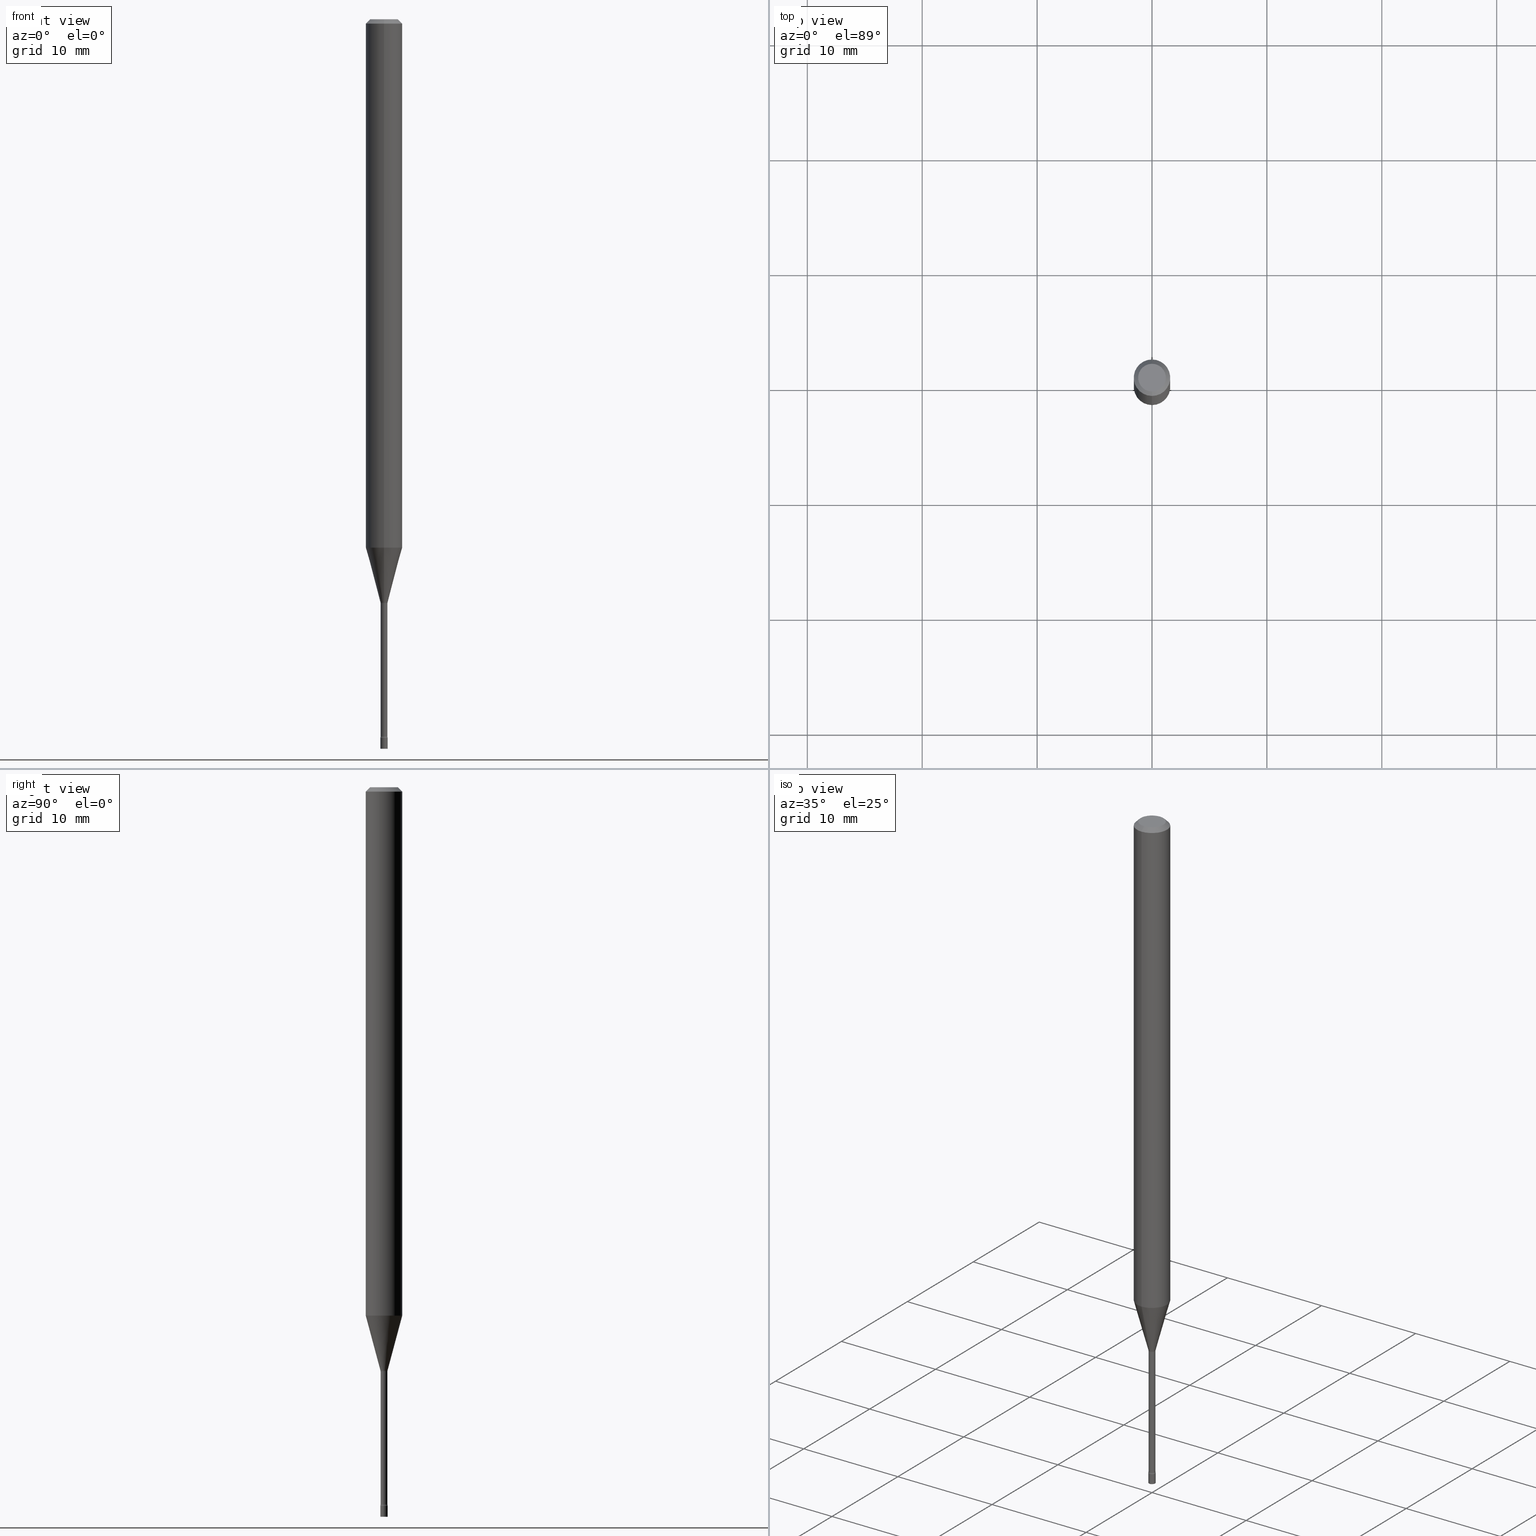
[diagram: canonical four-view strip — front | top / right | iso, engineering-drawing reading convention]
A machine part, canonical four-view strip (front | top / right | iso — engineering-drawing reading convention). The complete STEP part file that produces these views, byte-faithful:
ISO-10303-21;
HEADER;
FILE_DESCRIPTION (( 'STEP AP203' ),
    '1' );
FILE_NAME ('09618.STEP',
    '2024-03-09T00:01:53',
    ( '' ),
    ( '' ),
    'SwSTEP 2.0',
    'SolidWorks 2023',
    '' );
FILE_SCHEMA (( 'CONFIG_CONTROL_DESIGN' ));
ENDSEC;

DATA;
#1 = TOROIDAL_SURFACE ( 'NONE', #302, 0.02675000000000000294, 0.01500000000000002720 ) ;
#2 = CC_DESIGN_APPROVAL ( #36, ( #130 ) ) ;
#3 = EDGE_CURVE ( 'NONE', #458, #146, #490, .T. ) ;
#4 = FACE_OUTER_BOUND ( 'NONE', #18, .T. ) ;
#5 = DIRECTION ( 'NONE',  ( -1.000000000000000000, 6.982962677686265922E-15, -4.876176775795935793E-29 ) ) ;
#6 = CARTESIAN_POINT ( 'NONE',  ( 2.656048273965337288E-16, 0.01226111260565700654, -1.998092501787273045 ) ) ;
#7 = PERSON_AND_ORGANIZATION_ROLE ( 'design_supplier' ) ;
#8 = ORIENTED_EDGE ( 'NONE', *, *, #144, .F. ) ;
#9 = LOCAL_TIME ( 19, 1, 53.00000000000000000, #425 ) ;
#10 =( CONVERSION_BASED_UNIT ( 'INCH', #379 ) LENGTH_UNIT ( ) NAMED_UNIT ( #197 ) );
#11 = APPROVAL_ROLE ( '' ) ;
#12 = FACE_OUTER_BOUND ( 'NONE', #187, .T. ) ;
#13 = ORIENTED_EDGE ( 'NONE', *, *, #414, .T. ) ;
#14 = CARTESIAN_POINT ( 'NONE',  ( 3.840629472727447874E-16, 0.04749999999999999362, -1.947592745229184119E-16 ) ) ;
#15 = CALENDAR_DATE ( 2024, 8, 3 ) ;
#16 = CARTESIAN_POINT ( 'NONE',  ( 6.113672015462842613E-29, -8.728703347107864943E-15, -2.500000000000000000 ) ) ;
#17 = DATE_AND_TIME ( #15, #258 ) ;
#18 = EDGE_LOOP ( 'NONE', ( #401, #25 ) ) ;
#19 = CIRCLE ( 'NONE', #491, 0.06250000000000000000 ) ;
#20 = ADVANCED_FACE ( 'NONE', ( #12 ), #1, .F. ) ;
#21 = ORIENTED_EDGE ( 'NONE', *, *, #75, .T. ) ;
#22 =( NAMED_UNIT ( * ) SI_UNIT ( $, .STERADIAN. ) SOLID_ANGLE_UNIT ( ) );
#23 = VERTEX_POINT ( 'NONE', #506 ) ;
#24 = CARTESIAN_POINT ( 'NONE',  ( 4.895878488789037891E-29, -6.989697800475853089E-15, -2.001974787463811190 ) ) ;
#25 = ORIENTED_EDGE ( 'NONE', *, *, #280, .T. ) ;
#26 = DIRECTION ( 'NONE',  ( -6.982962677686267499E-15, -1.000000000000000000, 0.000000000000000000 ) ) ;
#27 = ORIENTED_EDGE ( 'NONE', *, *, #113, .F. ) ;
#28 = CIRCLE ( 'NONE', #462, 0.04749999999999999362 ) ;
#29 = CARTESIAN_POINT ( 'NONE',  ( -1.867942516280587025E-16, -0.02675000000000699388, -2.001974787463811190 ) ) ;
#30 = PRODUCT_RELATED_PRODUCT_CATEGORY ( 'detail', '', ( #171 ) ) ;
#31 = ORIENTED_EDGE ( 'NONE', *, *, #196, .F. ) ;
#32 = LINE ( 'NONE', #400, #450 ) ;
#33 = ADVANCED_FACE ( 'NONE', ( #134 ), #331, .F. ) ;
#34 = DIRECTION ( 'NONE',  ( -2.445524548783828743E-29, 3.491401512269146579E-15, 1.000000000000000000 ) ) ;
#35 = AXIS2_PLACEMENT_3D ( 'NONE', #157, #230, #114 ) ;
#36 = APPROVAL ( #88, 'UNSPECIFIED' ) ;
#37 = CIRCLE ( 'NONE', #184, 0.01250000000000000069 ) ;
#38 = LINE ( 'NONE', #79, #503 ) ;
#39 = CARTESIAN_POINT ( 'NONE',  ( -8.204981146281379852E-17, -0.01175000000000002605, 4.102396776916256983E-17 ) ) ;
#40 = CARTESIAN_POINT ( 'NONE',  ( 8.728703347113945828E-17, 0.01249999999999127157, -2.500000000000000000 ) ) ;
#41 = EDGE_CURVE ( 'NONE', #374, #420, #449, .T. ) ;
#42 = CIRCLE ( 'NONE', #109, 0.01175000000000000350 ) ;
#43 = AXIS2_PLACEMENT_3D ( 'NONE', #215, #152, #138 ) ;
#44 = CARTESIAN_POINT ( 'NONE',  ( -4.287811248607203282E-16, -0.06250000000000005551, -0.01499999999999981209 ) ) ;
#45 = MECHANICAL_CONTEXT ( 'NONE', #188, 'mechanical' ) ;
#46 = LINE ( 'NONE', #39, #160 ) ;
#47 = ADVANCED_FACE ( 'NONE', ( #221 ), #309, .T. ) ;
#48 = DIRECTION ( 'NONE',  ( -6.982962677686266711E-15, -1.000000000000000000, 3.491401512269146185E-15 ) ) ;
#49 = PERSON_AND_ORGANIZATION ( #510, #355 ) ;
#50 = APPLICATION_CONTEXT ( 'configuration controlled 3d designs of mechanical parts and assemblies' ) ;
#51 = CIRCLE ( 'NONE', #235, 0.01250000000000000069 ) ;
#52 = CARTESIAN_POINT ( 'NONE',  ( 3.668286823175750261E-31, -5.237102268403730666E-17, -0.01500000000000003067 ) ) ;
#53 = EDGE_LOOP ( 'NONE', ( #268, #509, #497, #271 ) ) ;
#54 = ORIENTED_EDGE ( 'NONE', *, *, #293, .T. ) ;
#55 = EDGE_LOOP ( 'NONE', ( #219, #93, #474, #391 ) ) ;
#56 = COORDINATED_UNIVERSAL_TIME_OFFSET ( 5, 0, .BEHIND. ) ;
#57 = DIRECTION ( 'NONE',  ( -6.982962677686265133E-15, -1.000000000000000000, 0.000000000000000000 ) ) ;
#58 = VERTEX_POINT ( 'NONE', #383 ) ;
#59 = EDGE_CURVE ( 'NONE', #178, #458, #255, .T. ) ;
#60 = DIRECTION ( 'NONE',  ( -1.000000000000000000, 6.982962677686265922E-15, -4.883557194083112340E-29 ) ) ;
#61 = AXIS2_PLACEMENT_3D ( 'NONE', #442, #485, #408 ) ;
#62 = ORIENTED_EDGE ( 'NONE', *, *, #224, .T. ) ;
#63 = DIRECTION ( 'NONE',  ( -6.982962677686265922E-15, -1.000000000000000000, 3.483106191921935554E-15 ) ) ;
#64 = APPLICATION_PROTOCOL_DEFINITION ( 'international standard', 'config_control_design', 1994, #188 ) ;
#65 = ORIENTED_EDGE ( 'NONE', *, *, #361, .F. ) ;
#66 = EDGE_CURVE ( 'NONE', #420, #374, #459, .T. ) ;
#67 = CARTESIAN_POINT ( 'NONE',  ( 0.01250000000000000069, -8.683314089702904272E-15, -2.462000000000000188 ) ) ;
#68 = ORIENTED_EDGE ( 'NONE', *, *, #296, .T. ) ;
#69 = EDGE_CURVE ( 'NONE', #178, #352, #145, .T. ) ;
#70 = DIRECTION ( 'NONE',  ( -6.982962677686266711E-15, -1.000000000000000000, 3.491401512269146579E-15 ) ) ;
#71 = VECTOR ( 'NONE', #335, 39.37007874015748143 ) ;
#72 = ORIENTED_EDGE ( 'NONE', *, *, #280, .F. ) ;
#73 = AXIS2_PLACEMENT_3D ( 'NONE', #323, #234, #272 ) ;
#74 = DIRECTION ( 'NONE',  ( 2.445524548783828743E-29, -3.491401512269146579E-15, -1.000000000000000000 ) ) ;
#75 = EDGE_CURVE ( 'NONE', #423, #461, #86, .T. ) ;
#76 = PLANE ( 'NONE',  #248 ) ;
#77 = ADVANCED_FACE ( 'NONE', ( #253 ), #277, .F. ) ;
#78 = AXIS2_PLACEMENT_3D ( 'NONE', #29, #232, #26 ) ;
#79 = CARTESIAN_POINT ( 'NONE',  ( 4.364351673553919652E-16, 0.06249999999999995143, -0.01500000000000024751 ) ) ;
#80 = DIRECTION ( 'NONE',  ( -1.807323732225328167E-15, -0.2588190451025179084, 0.9659258262890690894 ) ) ;
#81 = CARTESIAN_POINT ( 'NONE',  ( 4.427862887806334349E-29, -6.321526066992672815E-15, -1.810598421515879908 ) ) ;
#82 = DIRECTION ( 'NONE',  ( -6.982962677686265922E-15, -1.000000000000000000, 4.370956789862821150E-15 ) ) ;
#83 = EDGE_CURVE ( 'NONE', #23, #396, #19, .T. ) ;
#84 = DIRECTION ( 'NONE',  ( -2.445524548783828743E-29, 3.491401512269146579E-15, 1.000000000000000000 ) ) ;
#85 = CLOSED_SHELL ( 'NONE', ( #20, #159, #181, #241, #239, #158, #350, #47, #370, #322, #100, #77, #165, #33 ) ) ;
#86 = CIRCLE ( 'NONE', #200, 0.01250000000000000069 ) ;
#87 = FACE_OUTER_BOUND ( 'NONE', #434, .T. ) ;
#88 = APPROVAL_STATUS ( 'not_yet_approved' ) ;
#89 = PRODUCT_DEFINITION_SHAPE ( 'NONE', 'NONE',  #130 ) ;
#90 = DIRECTION ( 'NONE',  ( -4.851104656540964275E-15, -0.7071067811865500152, -0.7071067811865450192 ) ) ;
#91 = PERSON_AND_ORGANIZATION ( #510, #355 ) ;
#92 = DIRECTION ( 'NONE',  ( 1.000000000000000000, -6.982962677686216223E-15, 0.000000000000000000 ) ) ;
#93 = ORIENTED_EDGE ( 'NONE', *, *, #69, .T. ) ;
#94 = CARTESIAN_POINT ( 'NONE',  ( -8.204981146276470426E-17, -0.01175000000000699270, -2.001974787463811190 ) ) ;
#95 = DATE_AND_TIME ( #496, #389 ) ;
#96 = AXIS2_PLACEMENT_3D ( 'NONE', #141, #306, #173 ) ;
#97 = CIRCLE ( 'NONE', #290, 0.06250000000000000000 ) ;
#98 = DIRECTION ( 'NONE',  ( -2.445524548783828743E-29, 3.491401512269146579E-15, 1.000000000000000000 ) ) ;
#99 = PRODUCT_DEFINITION_FORMATION_WITH_SPECIFIED_SOURCE ( 'ANY', '', #171, .NOT_KNOWN. ) ;
#100 = ADVANCED_FACE ( 'NONE', ( #190 ), #76, .F. ) ;
#101 = DIRECTION ( 'NONE',  ( -2.445468806185136597E-29, 3.491481338843145583E-15, 1.000000000000000000 ) ) ;
#102 = ORIENTED_EDGE ( 'NONE', *, *, #250, .F. ) ;
#103 = CARTESIAN_POINT ( 'NONE',  ( -4.364351673553916201E-16, -0.06250000000000000000, 2.182125945168216612E-16 ) ) ;
#104 = DATE_AND_TIME ( #466, #9 ) ;
#105 = ORIENTED_EDGE ( 'NONE', *, *, #41, .F. ) ;
#106 = ORIENTED_EDGE ( 'NONE', *, *, #201, .T. ) ;
#107 = CARTESIAN_POINT ( 'NONE',  ( 8.348877145181194460E-17, 0.01175000000000002605, -4.102396776916256983E-17 ) ) ;
#108 = CIRCLE ( 'NONE', #411, 0.06250000000000000000 ) ;
#109 = AXIS2_PLACEMENT_3D ( 'NONE', #448, #131, #168 ) ;
#110 = ORIENTED_EDGE ( 'NONE', *, *, #177, .T. ) ;
#111 = FACE_OUTER_BOUND ( 'NONE', #185, .T. ) ;
#112 = EDGE_LOOP ( 'NONE', ( #387, #237, #456, #492 ) ) ;
#113 = EDGE_CURVE ( 'NONE', #146, #512, #256, .T. ) ;
#114 = DIRECTION ( 'NONE',  ( -6.982962677686266711E-15, -1.000000000000000000, 3.491401512269146185E-15 ) ) ;
#115 = ORIENTED_EDGE ( 'NONE', *, *, #196, .T. ) ;
#116 = DIRECTION ( 'NONE',  ( -2.445468806185136877E-29, 3.491481338843145188E-15, 1.000000000000000000 ) ) ;
#117 = CIRCLE ( 'NONE', #155, 0.01500000000000002720 ) ;
#118 = SECURITY_CLASSIFICATION ( '', '', #183 ) ;
#119 = CYLINDRICAL_SURFACE ( 'NONE', #518, 0.06250000000000000000 ) ;
#120 = CARTESIAN_POINT ( 'NONE',  ( 8.712044494296020912E-17, 0.01226111260565700481, -1.998092501787273045 ) ) ;
#121 = CIRCLE ( 'NONE', #78, 0.01500000000000002720 ) ;
#122 = PLANE ( 'NONE',  #421 ) ;
#123 = CC_DESIGN_PERSON_AND_ORGANIZATION_ASSIGNMENT ( #292, #386, ( #118 ) ) ;
#124 = CYLINDRICAL_SURFACE ( 'NONE', #128, 0.01250000000000000069 ) ;
#125 = DIRECTION ( 'NONE',  ( -6.982962677686265133E-15, -1.000000000000000000, 0.000000000000000000 ) ) ;
#126 = CARTESIAN_POINT ( 'NONE',  ( 6.020744200827806517E-29, -8.596027056231825938E-15, -2.462000000000000188 ) ) ;
#127 = DIRECTION ( 'NONE',  ( 1.000000000000000000, -6.982962677686216223E-15, 0.000000000000000000 ) ) ;
#128 = AXIS2_PLACEMENT_3D ( 'NONE', #447, #247, #410 ) ;
#129 = PERSON_AND_ORGANIZATION_ROLE ( 'creator' ) ;
#130 = PRODUCT_DEFINITION ( 'UNKNOWN', '', #99, #373 ) ;
#131 = DIRECTION ( 'NONE',  ( -2.445524548783828743E-29, 3.491401512269146579E-15, 1.000000000000000000 ) ) ;
#132 = COORDINATED_UNIVERSAL_TIME_OFFSET ( 5, 0, .BEHIND. ) ;
#133 = DIRECTION ( 'NONE',  ( 1.000000000000000000, -6.982962677686294321E-15, 0.000000000000000000 ) ) ;
#134 = FACE_OUTER_BOUND ( 'NONE', #358, .T. ) ;
#135 = EDGE_LOOP ( 'NONE', ( #260, #54, #151, #102 ) ) ;
#136 = DATE_AND_TIME ( #346, #321 ) ;
#137 = ORIENTED_EDGE ( 'NONE', *, *, #66, .F. ) ;
#138 = DIRECTION ( 'NONE',  ( 1.000000000000000000, 0.000000000000000000, 0.000000000000000000 ) ) ;
#139 = ORIENTED_EDGE ( 'NONE', *, *, #59, .T. ) ;
#140 = CIRCLE ( 'NONE', #445, 0.01175000000000000350 ) ;
#141 = CARTESIAN_POINT ( 'NONE',  ( 6.009427217171644707E-29, -8.579477676614845561E-15, -2.457316251501201254 ) ) ;
#142 = EDGE_CURVE ( 'NONE', #424, #396, #351, .T. ) ;
#143 = DIRECTION ( 'NONE',  ( -2.445524548783828743E-29, 3.491401512269146579E-15, 1.000000000000000000 ) ) ;
#144 = EDGE_CURVE ( 'NONE', #461, #194, #402, .T. ) ;
#145 = LINE ( 'NONE', #107, #71 ) ;
#146 = VERTEX_POINT ( 'NONE', #147 ) ;
#147 = CARTESIAN_POINT ( 'NONE',  ( -8.728703347101810928E-17, -0.01250000000000859104, -2.462000000000000188 ) ) ;
#148 = AXIS2_PLACEMENT_3D ( 'NONE', #478, #74, #517 ) ;
#149 = EDGE_LOOP ( 'NONE', ( #470, #228 ) ) ;
#150 = DIRECTION ( 'NONE',  ( -2.445524548783828463E-29, 3.491401512269146579E-15, 1.000000000000000000 ) ) ;
#151 = ORIENTED_EDGE ( 'NONE', *, *, #274, .F. ) ;
#152 = DIRECTION ( 'NONE',  ( 0.000000000000000000, 0.000000000000000000, 1.000000000000000000 ) ) ;
#153 = DIRECTION ( 'NONE',  ( -2.445524548783828743E-29, 3.491401512269146579E-15, 1.000000000000000000 ) ) ;
#154 = LINE ( 'NONE', #279, #437 ) ;
#155 = AXIS2_PLACEMENT_3D ( 'NONE', #360, #430, #238 ) ;
#156 = MANIFOLD_SOLID_BREP ( 'Body-Move/Copy2[2]', #85 ) ;
#157 = CARTESIAN_POINT ( 'NONE',  ( 6.009290239977977822E-29, -8.579673835752435391E-15, -2.457316251501201698 ) ) ;
#158 = ADVANCED_FACE ( 'NONE', ( #356 ), #367, .T. ) ;
#159 = ADVANCED_FACE ( 'NONE', ( #514 ), #395, .T. ) ;
#160 = VECTOR ( 'NONE', #202, 39.37007874015748143 ) ;
#161 = DIRECTION ( 'NONE',  ( 2.445524548783828743E-29, -3.491401512269146579E-15, -1.000000000000000000 ) ) ;
#162 = DIRECTION ( 'NONE',  ( -6.982962677686265922E-15, -1.000000000000000000, 3.483106191921935554E-15 ) ) ;
#163 = CARTESIAN_POINT ( 'NONE',  ( 3.316907271900976096E-16, 0.04749999999999999362, -1.803004231778514264E-16 ) ) ;
#164 = CARTESIAN_POINT ( 'NONE',  ( -0.01250000000000000069, -8.573547359699832444E-15, -2.500000000000000000 ) ) ;
#165 = ADVANCED_FACE ( 'NONE', ( #519 ), #441, .T. ) ;
#166 = SHAPE_DEFINITION_REPRESENTATION ( #89, #353 ) ;
#167 = UNCERTAINTY_MEASURE_WITH_UNIT (LENGTH_MEASURE( 1.000000000000000082E-05 ), #10, 'distance_accuracy_value', 'NONE');
#168 = DIRECTION ( 'NONE',  ( -6.982962677686265922E-15, -1.000000000000000000, 0.000000000000000000 ) ) ;
#169 = CONICAL_SURFACE ( 'NONE', #206, 0.06250000000000000000, 0.7853981633974483900 ) ;
#170 = PERSON_AND_ORGANIZATION ( #510, #355 ) ;
#171 = PRODUCT ( '09618', '09618', '', ( #45 ) ) ;
#172 = APPROVAL_PERSON_ORGANIZATION ( #380, #368, #11 ) ;
#173 = DIRECTION ( 'NONE',  ( -6.982962677686265133E-15, -1.000000000000000000, 0.000000000000000000 ) ) ;
#174 = CARTESIAN_POINT ( 'NONE',  ( 4.440892098501067924E-16, 0.06249999999999367867, -1.810598421515880130 ) ) ;
#175 = PERSON_AND_ORGANIZATION ( #510, #355 ) ;
#176 = DIRECTION ( 'NONE',  ( -6.982962677686265133E-15, -1.000000000000000000, 0.000000000000000000 ) ) ;
#177 = EDGE_CURVE ( 'NONE', #420, #352, #117, .T. ) ;
#178 = VERTEX_POINT ( 'NONE', #473 ) ;
#179 = DATE_AND_TIME ( #298, #364 ) ;
#180 = EDGE_LOOP ( 'NONE', ( #211, #139, #394, #273 ) ) ;
#181 = ADVANCED_FACE ( 'NONE', ( #111 ), #243, .F. ) ;
#182 = CARTESIAN_POINT ( 'NONE',  ( 1.900701818158871192E-16, 0.02674999999999145769, -2.457316251501201698 ) ) ;
#183 = SECURITY_CLASSIFICATION_LEVEL ( 'unclassified' ) ;
#184 = AXIS2_PLACEMENT_3D ( 'NONE', #16, #385, #127 ) ;
#185 = EDGE_LOOP ( 'NONE', ( #333, #349, #264, #428 ) ) ;
#186 = CARTESIAN_POINT ( 'NONE',  ( 4.895766893511868006E-29, -6.989857611264368100E-15, -2.001974787463811190 ) ) ;
#187 = EDGE_LOOP ( 'NONE', ( #137, #110, #106, #31 ) ) ;
#188 = APPLICATION_CONTEXT ( 'configuration controlled 3d designs of mechanical parts and assemblies' ) ;
#189 = CC_DESIGN_PERSON_AND_ORGANIZATION_ASSIGNMENT ( #91, #7, ( #99 ) ) ;
#190 = FACE_OUTER_BOUND ( 'NONE', #233, .T. ) ;
#191 = EDGE_LOOP ( 'NONE', ( #382, #472, #314, #315 ) ) ;
#192 = CARTESIAN_POINT ( 'NONE',  ( 0.000000000000000000, 0.000000000000000000, 0.000000000000000000 ) ) ;
#193 = CIRCLE ( 'NONE', #484, 0.01175000000000004860 ) ;
#194 = VERTEX_POINT ( 'NONE', #67 ) ;
#195 = DIRECTION ( 'NONE',  ( -2.445468806185136877E-29, 3.491481338843145188E-15, 1.000000000000000000 ) ) ;
#196 = EDGE_CURVE ( 'NONE', #374, #499, #121, .T. ) ;
#197 = DIMENSIONAL_EXPONENTS ( 1.000000000000000000, 0.000000000000000000, 0.000000000000000000, 0.000000000000000000, 0.000000000000000000, 0.000000000000000000, 0.000000000000000000 ) ;
#198 = DIRECTION ( 'NONE',  ( -2.445524548783828463E-29, 3.491401512269146579E-15, 1.000000000000000000 ) ) ;
#199 = CARTESIAN_POINT ( 'NONE',  ( 8.728703347113853383E-17, 0.01249999999999140514, -2.462000000000000188 ) ) ;
#200 = AXIS2_PLACEMENT_3D ( 'NONE', #295, #101, #92 ) ;
#201 = EDGE_CURVE ( 'NONE', #352, #499, #140, .T. ) ;
#202 = DIRECTION ( 'NONE',  ( -2.445524548783828463E-29, 3.491401512269146579E-15, 1.000000000000000000 ) ) ;
#203 = EDGE_CURVE ( 'NONE', #515, #464, #343, .T. ) ;
#204 = DIRECTION ( 'NONE',  ( 6.982962677686265922E-15, 1.000000000000000000, -3.483106191921935554E-15 ) ) ;
#205 = DIRECTION ( 'NONE',  ( 1.839019923739597949E-15, 0.2588190451025246253, 0.9659258262890670910 ) ) ;
#206 = AXIS2_PLACEMENT_3D ( 'NONE', #444, #161, #204 ) ;
#207 = AXIS2_PLACEMENT_3D ( 'NONE', #182, #251, #500 ) ;
#208 = FACE_OUTER_BOUND ( 'NONE', #149, .T. ) ;
#209 = CARTESIAN_POINT ( 'NONE',  ( 0.01250000000000000069, -8.815990380578941699E-15, -2.500000000000000000 ) ) ;
#210 = APPROVAL_ROLE ( '' ) ;
#211 = ORIENTED_EDGE ( 'NONE', *, *, #69, .F. ) ;
#212 = PERSON_AND_ORGANIZATION ( #510, #355 ) ;
#213 = ORIENTED_EDGE ( 'NONE', *, *, #477, .F. ) ;
#214 = AXIS2_PLACEMENT_3D ( 'NONE', #299, #98, #48 ) ;
#215 = CARTESIAN_POINT ( 'NONE',  ( 0.000000000000000000, 0.000000000000000000, 0.000000000000000000 ) ) ;
#216 = AXIS2_PLACEMENT_3D ( 'NONE', #163, #328, #488 ) ;
#217 = APPROVAL_ROLE ( '' ) ;
#218 = APPROVAL_PERSON_ORGANIZATION ( #212, #282, #217 ) ;
#219 = ORIENTED_EDGE ( 'NONE', *, *, #412, .T. ) ;
#220 = EDGE_LOOP ( 'NONE', ( #310, #213, #431, #68 ) ) ;
#221 = FACE_OUTER_BOUND ( 'NONE', #53, .T. ) ;
#222 = COORDINATED_UNIVERSAL_TIME_OFFSET ( 5, 0, .BEHIND. ) ;
#223 = DIRECTION ( 'NONE',  ( -6.982962677686266711E-15, -1.000000000000000000, 3.491401512269146185E-15 ) ) ;
#224 = EDGE_CURVE ( 'NONE', #423, #455, #32, .T. ) ;
#225 = AXIS2_PLACEMENT_3D ( 'NONE', #312, #34, #363 ) ;
#226 = DIRECTION ( 'NONE',  ( -2.445524548783828743E-29, 3.491401512269146579E-15, 1.000000000000000000 ) ) ;
#227 = DIRECTION ( 'NONE',  ( -6.982962677686265133E-15, -1.000000000000000000, 0.000000000000000000 ) ) ;
#228 = ORIENTED_EDGE ( 'NONE', *, *, #203, .T. ) ;
#229 = CC_DESIGN_PERSON_AND_ORGANIZATION_ASSIGNMENT ( #49, #419, ( #171 ) ) ;
#230 = DIRECTION ( 'NONE',  ( -2.445524548783828743E-29, 3.491401512269146579E-15, 1.000000000000000000 ) ) ;
#231 = EDGE_LOOP ( 'NONE', ( #426, #308, #297, #65 ) ) ;
#232 = DIRECTION ( 'NONE',  ( -1.000000000000000000, 6.982962677686265922E-15, -4.883557194083112340E-29 ) ) ;
#233 = EDGE_LOOP ( 'NONE', ( #27, #417 ) ) ;
#234 = DIRECTION ( 'NONE',  ( -2.445524548783828743E-29, 3.491401512269146579E-15, 1.000000000000000000 ) ) ;
#235 = AXIS2_PLACEMENT_3D ( 'NONE', #305, #262, #57 ) ;
#236 = CIRCLE ( 'NONE', #207, 0.01499999999999999424 ) ;
#237 = ORIENTED_EDGE ( 'NONE', *, *, #142, .T. ) ;
#238 = DIRECTION ( 'NONE',  ( 7.105427357601000281E-15, 1.000000000000000000, 0.000000000000000000 ) ) ;
#239 = ADVANCED_FACE ( 'NONE', ( #359 ), #119, .T. ) ;
#240 = DIRECTION ( 'NONE',  ( -6.982962677686265133E-15, -1.000000000000000000, 3.491401512269146974E-15 ) ) ;
#241 = ADVANCED_FACE ( 'NONE', ( #480 ), #332, .T. ) ;
#242 = FACE_OUTER_BOUND ( 'NONE', #220, .T. ) ;
#243 = TOROIDAL_SURFACE ( 'NONE', #35, 0.02675000000000003764, 0.01499999999999998904 ) ;
#244 = CC_DESIGN_PERSON_AND_ORGANIZATION_ASSIGNMENT ( #175, #337, ( #130 ) ) ;
#245 = DIRECTION ( 'NONE',  ( 4.937700262164548042E-15, 0.7071067811865451302, -0.7071067811865499042 ) ) ;
#246 = DIRECTION ( 'NONE',  ( 2.438088387897960049E-29, -3.491481338843145188E-15, -1.000000000000000000 ) ) ;
#247 = DIRECTION ( 'NONE',  ( -2.445468806185136597E-29, 3.491481338843145583E-15, 1.000000000000000000 ) ) ;
#248 = AXIS2_PLACEMENT_3D ( 'NONE', #199, #150, #433 ) ;
#249 = FACE_OUTER_BOUND ( 'NONE', #342, .T. ) ;
#250 = EDGE_CURVE ( 'NONE', #374, #58, #154, .T. ) ;
#251 = DIRECTION ( 'NONE',  ( 1.000000000000000000, -7.105427357601001070E-15, 4.926314530948498868E-29 ) ) ;
#252 = FACE_OUTER_BOUND ( 'NONE', #231, .T. ) ;
#253 = FACE_OUTER_BOUND ( 'NONE', #191, .T. ) ;
#254 = ORIENTED_EDGE ( 'NONE', *, *, #384, .F. ) ;
#255 = CIRCLE ( 'NONE', #96, 0.01175000000000004860 ) ;
#256 = CIRCLE ( 'NONE', #388, 0.01250000000000000069 ) ;
#257 = EDGE_CURVE ( 'NONE', #458, #499, #46, .T. ) ;
#258 = LOCAL_TIME ( 19, 1, 53.00000000000000000, #489 ) ;
#259 = CARTESIAN_POINT ( 'NONE',  ( 4.886384263861672544E-29, -6.976143182393728222E-15, -1.998092501787273045 ) ) ;
#260 = ORIENTED_EDGE ( 'NONE', *, *, #41, .T. ) ;
#261 =( NAMED_UNIT ( * ) PLANE_ANGLE_UNIT ( ) SI_UNIT ( $, .RADIAN. ) );
#262 = DIRECTION ( 'NONE',  ( -2.445524548783828743E-29, 3.491401512269146579E-15, 1.000000000000000000 ) ) ;
#263 = CARTESIAN_POINT ( 'NONE',  ( 6.009290239977977822E-29, -8.579673835752435391E-15, -2.457316251501201698 ) ) ;
#264 = ORIENTED_EDGE ( 'NONE', *, *, #357, .T. ) ;
#265 = DIRECTION ( 'NONE',  ( 1.000000000000000000, -6.982962677686267499E-15, 4.876176775795936353E-29 ) ) ;
#266 = CARTESIAN_POINT ( 'NONE',  ( 4.427862887806334349E-29, -6.321526066992672815E-15, -1.810598421515879908 ) ) ;
#267 = DIRECTION ( 'NONE',  ( -2.445524548783828743E-29, 3.491401512269146579E-15, 1.000000000000000000 ) ) ;
#268 = ORIENTED_EDGE ( 'NONE', *, *, #142, .F. ) ;
#269 = VECTOR ( 'NONE', #116, 39.37007874015748143 ) ;
#270 = CARTESIAN_POINT ( 'NONE',  ( 4.440892098500625669E-16, 0.06250000000000000000, -2.182125945168216612E-16 ) ) ;
#271 = ORIENTED_EDGE ( 'NONE', *, *, #296, .F. ) ;
#272 = DIRECTION ( 'NONE',  ( -6.982962677686265133E-15, -1.000000000000000000, 0.000000000000000000 ) ) ;
#273 = ORIENTED_EDGE ( 'NONE', *, *, #201, .F. ) ;
#274 = EDGE_CURVE ( 'NONE', #58, #424, #97, .T. ) ;
#275 = CARTESIAN_POINT ( 'NONE',  ( 7.071895182315478193E-46, -1.009633109036832983E-31, -2.891770269013396492E-17 ) ) ;
#276 = ORIENTED_EDGE ( 'NONE', *, *, #443, .T. ) ;
#277 = TOROIDAL_SURFACE ( 'NONE', #354, 0.02675000000000003764, 0.01499999999999998904 ) ;
#278 = DIRECTION ( 'NONE',  ( -6.982962677686265133E-15, -1.000000000000000000, 0.000000000000000000 ) ) ;
#279 = CARTESIAN_POINT ( 'NONE',  ( -8.561889171221131810E-17, -0.01226111260567095892, -1.998092501787273045 ) ) ;
#280 = EDGE_CURVE ( 'NONE', #455, #194, #311, .T. ) ;
#281 = DIRECTION ( 'NONE',  ( -2.445524548783828743E-29, 3.491401512269146579E-15, 1.000000000000000000 ) ) ;
#282 = APPROVAL ( #376, 'UNSPECIFIED' ) ;
#283 = AXIS2_PLACEMENT_3D ( 'NONE', #126, #288, #133 ) ;
#284 = VECTOR ( 'NONE', #90, 39.37007874015748143 ) ;
#285 = DIRECTION ( 'NONE',  ( -2.438088387897960049E-29, 3.491481338843145188E-15, 1.000000000000000000 ) ) ;
#286 = CARTESIAN_POINT ( 'NONE',  ( 4.440892098501070882E-16, 0.06249999999999995143, -0.01500000000000024751 ) ) ;
#287 = ADVANCED_FACE ( 'NONE', ( #87 ), #520, .T. ) ;
#288 = DIRECTION ( 'NONE',  ( -2.445468806185136597E-29, 3.491481338843145583E-15, 1.000000000000000000 ) ) ;
#289 = AXIS2_PLACEMENT_3D ( 'NONE', #348, #508, #381 ) ;
#290 = AXIS2_PLACEMENT_3D ( 'NONE', #81, #84, #365 ) ;
#291 = LINE ( 'NONE', #44, #284 ) ;
#292 = PERSON_AND_ORGANIZATION ( #510, #355 ) ;
#293 = EDGE_CURVE ( 'NONE', #420, #424, #413, .T. ) ;
#294 = DATE_TIME_ROLE ( 'creation_date' ) ;
#295 = CARTESIAN_POINT ( 'NONE',  ( 6.113672015462842613E-29, -8.728703347107864943E-15, -2.500000000000000000 ) ) ;
#296 = EDGE_CURVE ( 'NONE', #396, #23, #108, .T. ) ;
#297 = ORIENTED_EDGE ( 'NONE', *, *, #250, .T. ) ;
#298 = CALENDAR_DATE ( 2024, 8, 3 ) ;
#299 = CARTESIAN_POINT ( 'NONE',  ( 4.895766893511868006E-29, -6.989857611264368100E-15, -2.001974787463811190 ) ) ;
#300 = AXIS2_PLACEMENT_3D ( 'NONE', #259, #307, #227 ) ;
#301 = EDGE_LOOP ( 'NONE', ( #276, #62, #339, #8 ) ) ;
#302 = AXIS2_PLACEMENT_3D ( 'NONE', #186, #341, #502 ) ;
#303 = DIRECTION ( 'NONE',  ( -2.445468806185136597E-29, 3.491481338843145583E-15, 1.000000000000000000 ) ) ;
#304 = AXIS2_PLACEMENT_3D ( 'NONE', #266, #226, #82 ) ;
#305 = CARTESIAN_POINT ( 'NONE',  ( 6.020881439105786871E-29, -8.595830523206639704E-15, -2.462000000000000188 ) ) ;
#306 = DIRECTION ( 'NONE',  ( -2.445524548783828743E-29, 3.491401512269146579E-15, 1.000000000000000000 ) ) ;
#307 = DIRECTION ( 'NONE',  ( -2.445524548783828743E-29, 3.491401512269146579E-15, 1.000000000000000000 ) ) ;
#308 = ORIENTED_EDGE ( 'NONE', *, *, #66, .T. ) ;
#309 = CYLINDRICAL_SURFACE ( 'NONE', #289, 0.06250000000000000000 ) ;
#310 = ORIENTED_EDGE ( 'NONE', *, *, #482, .F. ) ;
#311 = CIRCLE ( 'NONE', #61, 0.01250000000000000069 ) ;
#312 = CARTESIAN_POINT ( 'NONE',  ( 0.000000000000000000, 0.000000000000000000, 0.000000000000000000 ) ) ;
#313 = ADVANCED_FACE ( 'NONE', ( #487 ), #124, .T. ) ;
#314 = ORIENTED_EDGE ( 'NONE', *, *, #3, .T. ) ;
#315 = ORIENTED_EDGE ( 'NONE', *, *, #113, .T. ) ;
#316 = CC_DESIGN_DATE_AND_TIME_ASSIGNMENT ( #17, #294, ( #130 ) ) ;
#317 = DIRECTION ( 'NONE',  ( -2.445524548783828743E-29, 3.491401512269146579E-15, 1.000000000000000000 ) ) ;
#318 = AXIS2_PLACEMENT_3D ( 'NONE', #390, #60, #495 ) ;
#319 = VECTOR ( 'NONE', #198, 39.37007874015748143 ) ;
#320 = DIRECTION ( 'NONE',  ( -6.982962677686265922E-15, -1.000000000000000000, 3.491401512269146579E-15 ) ) ;
#321 = LOCAL_TIME ( 19, 1, 53.00000000000000000, #222 ) ;
#322 = ADVANCED_FACE ( 'NONE', ( #208 ), #369, .F. ) ;
#323 = CARTESIAN_POINT ( 'NONE',  ( 4.886384263861672544E-29, -6.976143182393728222E-15, -1.998092501787273045 ) ) ;
#324 = AXIS2_PLACEMENT_3D ( 'NONE', #192, #393, #240 ) ;
#325 = CC_DESIGN_SECURITY_CLASSIFICATION ( #118, ( #99 ) ) ;
#326 = EDGE_CURVE ( 'NONE', #194, #455, #513, .T. ) ;
#327 = DIRECTION ( 'NONE',  ( -2.445524548783828743E-29, 3.491401512269146579E-15, 1.000000000000000000 ) ) ;
#328 = DIRECTION ( 'NONE',  ( 2.445524548783828463E-29, -3.491401512269146579E-15, -1.000000000000000000 ) ) ;
#329 = MANIFOLD_SOLID_BREP ( 'Body-Move/Copy2[1]', #397 ) ;
#330 = CARTESIAN_POINT ( 'NONE',  ( -3.773273898774340269E-16, -0.04749999999999999362, 1.369238691426504697E-16 ) ) ;
#331 = TOROIDAL_SURFACE ( 'NONE', #214, 0.02675000000000000294, 0.01500000000000002720 ) ;
#332 = CONICAL_SURFACE ( 'NONE', #148, 0.06250000000000000000, 0.7853981633974483900 ) ;
#333 = ORIENTED_EDGE ( 'NONE', *, *, #59, .F. ) ;
#334 = APPROVAL_DATE_TIME ( #179, #282 ) ;
#335 = DIRECTION ( 'NONE',  ( -2.445524548783828463E-29, 3.491401512269146579E-15, 1.000000000000000000 ) ) ;
#336 = DIRECTION ( 'NONE',  ( -2.445524548783828463E-29, 3.491401512269146579E-15, 1.000000000000000000 ) ) ;
#337 = PERSON_AND_ORGANIZATION_ROLE ( 'creator' ) ;
#338 = CARTESIAN_POINT ( 'NONE',  ( 8.348877145187203361E-17, 0.01174999999999301430, -2.001974787463811190 ) ) ;
#339 = ORIENTED_EDGE ( 'NONE', *, *, #326, .F. ) ;
#340 = ORIENTED_EDGE ( 'NONE', *, *, #224, .F. ) ;
#341 = DIRECTION ( 'NONE',  ( -2.445524548783828743E-29, 3.491401512269146579E-15, 1.000000000000000000 ) ) ;
#342 = EDGE_LOOP ( 'NONE', ( #340, #21, #476, #72 ) ) ;
#343 = CIRCLE ( 'NONE', #398, 0.04749999999999999362 ) ;
#344 = CARTESIAN_POINT ( 'NONE',  ( 8.881784197007265416E-17, 0.01249999999999139820, -2.462000000000000188 ) ) ;
#345 = CC_DESIGN_APPROVAL ( #282, ( #99 ) ) ;
#346 = CALENDAR_DATE ( 2024, 8, 3 ) ;
#347 = ORIENTED_EDGE ( 'NONE', *, *, #75, .F. ) ;
#348 = CARTESIAN_POINT ( 'NONE',  ( 0.000000000000000000, 0.000000000000000000, 0.000000000000000000 ) ) ;
#349 = ORIENTED_EDGE ( 'NONE', *, *, #483, .T. ) ;
#350 = ADVANCED_FACE ( 'NONE', ( #252 ), #405, .T. ) ;
#351 = LINE ( 'NONE', #270, #319 ) ;
#352 = VERTEX_POINT ( 'NONE', #338 ) ;
#353 = ADVANCED_BREP_SHAPE_REPRESENTATION ( '09618', ( #329, #156, #43 ), #438 ) ;
#354 = AXIS2_PLACEMENT_3D ( 'NONE', #263, #463, #223 ) ;
#355 = ORGANIZATION ( 'UNSPECIFIED', 'UNSPECIFIED', '' ) ;
#356 = FACE_OUTER_BOUND ( 'NONE', #135, .T. ) ;
#357 = EDGE_CURVE ( 'NONE', #512, #146, #51, .T. ) ;
#358 = EDGE_LOOP ( 'NONE', ( #436, #105, #115, #13 ) ) ;
#359 = FACE_OUTER_BOUND ( 'NONE', #112, .T. ) ;
#360 = CARTESIAN_POINT ( 'NONE',  ( 1.900701818158757547E-16, 0.02674999999999301201, -2.001974787463811190 ) ) ;
#361 = EDGE_CURVE ( 'NONE', #424, #58, #429, .T. ) ;
#362 = VECTOR ( 'NONE', #205, 39.37007874015748854 ) ;
#363 = DIRECTION ( 'NONE',  ( -6.982962677686265133E-15, -1.000000000000000000, 3.491401512269146974E-15 ) ) ;
#364 = LOCAL_TIME ( 19, 1, 53.00000000000000000, #132 ) ;
#365 = DIRECTION ( 'NONE',  ( -6.982962677686265922E-15, -1.000000000000000000, 4.370956789862821150E-15 ) ) ;
#366 = CARTESIAN_POINT ( 'NONE',  ( 3.668286823175750261E-31, -5.237102268403730666E-17, -0.01500000000000003067 ) ) ;
#367 = CONICAL_SURFACE ( 'NONE', #73, 0.01226111260566398187, 0.2617993877991499629 ) ;
#368 = APPROVAL ( #457, 'UNSPECIFIED' ) ;
#369 = PLANE ( 'NONE',  #216 ) ;
#370 = ADVANCED_FACE ( 'NONE', ( #242 ), #169, .T. ) ;
#371 = CARTESIAN_POINT ( 'NONE',  ( 7.071895182315478193E-46, -1.009633109036832983E-31, -2.891770269013396492E-17 ) ) ;
#372 = APPROVAL_DATE_TIME ( #104, #36 ) ;
#373 = DESIGN_CONTEXT ( 'detailed design', #50, 'design' ) ;
#374 = VERTEX_POINT ( 'NONE', #404 ) ;
#375 = DIRECTION ( 'NONE',  ( -6.982962677686266711E-15, -1.000000000000000000, 3.491401512269146579E-15 ) ) ;
#376 = APPROVAL_STATUS ( 'not_yet_approved' ) ;
#377 = ORIENTED_EDGE ( 'NONE', *, *, #203, .F. ) ;
#378 = ORIENTED_EDGE ( 'NONE', *, *, #443, .F. ) ;
#379 = LENGTH_MEASURE_WITH_UNIT ( LENGTH_MEASURE( 0.02539999999999999897 ), #415 );
#380 = PERSON_AND_ORGANIZATION ( #510, #355 ) ;
#381 = DIRECTION ( 'NONE',  ( -6.982962677686265922E-15, -1.000000000000000000, 3.491401512269146579E-15 ) ) ;
#382 = ORIENTED_EDGE ( 'NONE', *, *, #483, .F. ) ;
#383 = CARTESIAN_POINT ( 'NONE',  ( -4.364351673553474439E-16, -0.06250000000000632827, -1.810598421515879464 ) ) ;
#384 = EDGE_CURVE ( 'NONE', #464, #396, #38, .T. ) ;
#385 = DIRECTION ( 'NONE',  ( -2.445468806185136597E-29, 3.491481338843145583E-15, 1.000000000000000000 ) ) ;
#386 = PERSON_AND_ORGANIZATION_ROLE ( 'classification_officer' ) ;
#387 = ORIENTED_EDGE ( 'NONE', *, *, #274, .T. ) ;
#388 = AXIS2_PLACEMENT_3D ( 'NONE', #511, #435, #278 ) ;
#389 = LOCAL_TIME ( 19, 1, 53.00000000000000000, #56 ) ;
#390 = CARTESIAN_POINT ( 'NONE',  ( -1.867942516280478063E-16, -0.02675000000000861758, -2.457316251501201698 ) ) ;
#391 = ORIENTED_EDGE ( 'NONE', *, *, #257, .F. ) ;
#392 = ADVANCED_FACE ( 'NONE', ( #4 ), #122, .T. ) ;
#393 = DIRECTION ( 'NONE',  ( -2.445524548783828743E-29, 3.491401512269146579E-15, 1.000000000000000000 ) ) ;
#394 = ORIENTED_EDGE ( 'NONE', *, *, #257, .T. ) ;
#395 = CYLINDRICAL_SURFACE ( 'NONE', #324, 0.01175000000000002605 ) ;
#396 = VERTEX_POINT ( 'NONE', #286 ) ;
#397 = CLOSED_SHELL ( 'NONE', ( #313, #392, #507, #287 ) ) ;
#398 = AXIS2_PLACEMENT_3D ( 'NONE', #275, #153, #70 ) ;
#399 = CC_DESIGN_APPROVAL ( #368, ( #118 ) ) ;
#400 = CARTESIAN_POINT ( 'NONE',  ( -0.01250000000000000069, 8.881784197001252816E-17, -6.148668862818633278E-31 ) ) ;
#401 = ORIENTED_EDGE ( 'NONE', *, *, #326, .T. ) ;
#402 = LINE ( 'NONE', #403, #269 ) ;
#403 = CARTESIAN_POINT ( 'NONE',  ( 0.01250000000000000069, -8.728703347107834621E-17, 6.095220969744920617E-31 ) ) ;
#404 = CARTESIAN_POINT ( 'NONE',  ( -8.561889171221131810E-17, -0.01226111260567095892, -1.998092501787273045 ) ) ;
#405 = CONICAL_SURFACE ( 'NONE', #479, 0.01226111260566398187, 0.2617993877991499629 ) ;
#406 = VECTOR ( 'NONE', #336, 39.37007874015748143 ) ;
#407 = DIRECTION ( 'NONE',  ( 1.000000000000000000, -6.982962677686265922E-15, 4.876176775795935793E-29 ) ) ;
#408 = DIRECTION ( 'NONE',  ( 1.000000000000000000, -6.982962677686294321E-15, 0.000000000000000000 ) ) ;
#409 = CARTESIAN_POINT ( 'NONE',  ( 6.009427217171644707E-29, -8.579477676614845561E-15, -2.457316251501201254 ) ) ;
#410 = DIRECTION ( 'NONE',  ( 1.000000000000000000, -6.982962677686267499E-15, 4.876176775795936353E-29 ) ) ;
#411 = AXIS2_PLACEMENT_3D ( 'NONE', #366, #281, #162 ) ;
#412 = EDGE_CURVE ( 'NONE', #458, #178, #193, .T. ) ;
#413 = LINE ( 'NONE', #120, #362 ) ;
#414 = EDGE_CURVE ( 'NONE', #499, #352, #42, .T. ) ;
#415 =( LENGTH_UNIT ( ) NAMED_UNIT ( * ) SI_UNIT ( $, .METRE. ) );
#416 = CARTESIAN_POINT ( 'NONE',  ( 4.886384263861672544E-29, -6.976143182393728222E-15, -1.998092501787273045 ) ) ;
#417 = ORIENTED_EDGE ( 'NONE', *, *, #357, .F. ) ;
#418 = CARTESIAN_POINT ( 'NONE',  ( 0.000000000000000000, 0.000000000000000000, 0.000000000000000000 ) ) ;
#419 = PERSON_AND_ORGANIZATION_ROLE ( 'design_owner' ) ;
#420 = VERTEX_POINT ( 'NONE', #6 ) ;
#421 = AXIS2_PLACEMENT_3D ( 'NONE', #486, #285, #407 ) ;
#422 = APPROVAL_DATE_TIME ( #95, #368 ) ;
#423 = VERTEX_POINT ( 'NONE', #164 ) ;
#424 = VERTEX_POINT ( 'NONE', #174 ) ;
#425 = COORDINATED_UNIVERSAL_TIME_OFFSET ( 5, 0, .BEHIND. ) ;
#426 = ORIENTED_EDGE ( 'NONE', *, *, #293, .F. ) ;
#427 = DIRECTION ( 'NONE',  ( -6.982962677686265133E-15, -1.000000000000000000, 0.000000000000000000 ) ) ;
#428 = ORIENTED_EDGE ( 'NONE', *, *, #3, .F. ) ;
#429 = CIRCLE ( 'NONE', #304, 0.06250000000000000000 ) ;
#430 = DIRECTION ( 'NONE',  ( 1.000000000000000000, -7.105427357601001070E-15, 4.926314530948498868E-29 ) ) ;
#431 = ORIENTED_EDGE ( 'NONE', *, *, #384, .T. ) ;
#432 = CC_DESIGN_DATE_AND_TIME_ASSIGNMENT ( #136, #454, ( #118 ) ) ;
#433 = DIRECTION ( 'NONE',  ( -6.982962677686265922E-15, -1.000000000000000000, 3.491401512269146579E-15 ) ) ;
#434 = EDGE_LOOP ( 'NONE', ( #378, #347 ) ) ;
#435 = DIRECTION ( 'NONE',  ( -2.445524548783828743E-29, 3.491401512269146579E-15, 1.000000000000000000 ) ) ;
#436 = ORIENTED_EDGE ( 'NONE', *, *, #177, .F. ) ;
#437 = VECTOR ( 'NONE', #80, 39.37007874015748143 ) ;
#438 =( GEOMETRIC_REPRESENTATION_CONTEXT ( 3 ) GLOBAL_UNCERTAINTY_ASSIGNED_CONTEXT ( ( #167 ) ) GLOBAL_UNIT_ASSIGNED_CONTEXT ( ( #10, #261, #22 ) ) REPRESENTATION_CONTEXT ( 'NONE', 'WORKASPACE' ) );
#439 = AXIS2_PLACEMENT_3D ( 'NONE', #418, #303, #265 ) ;
#440 = DIRECTION ( 'NONE',  ( -2.445524548783828743E-29, 3.491401512269146579E-15, 1.000000000000000000 ) ) ;
#441 = CYLINDRICAL_SURFACE ( 'NONE', #225, 0.01175000000000002605 ) ;
#442 = CARTESIAN_POINT ( 'NONE',  ( 6.020744200827806517E-29, -8.596027056231825938E-15, -2.462000000000000188 ) ) ;
#443 = EDGE_CURVE ( 'NONE', #461, #423, #37, .T. ) ;
#444 = CARTESIAN_POINT ( 'NONE',  ( 3.668286823175750261E-31, -5.237102268403730666E-17, -0.01500000000000003067 ) ) ;
#445 = AXIS2_PLACEMENT_3D ( 'NONE', #24, #440, #475 ) ;
#446 = APPROVAL_PERSON_ORGANIZATION ( #170, #36, #210 ) ;
#447 = CARTESIAN_POINT ( 'NONE',  ( 0.000000000000000000, 0.000000000000000000, 0.000000000000000000 ) ) ;
#448 = CARTESIAN_POINT ( 'NONE',  ( 4.895878488789037891E-29, -6.989697800475853089E-15, -2.001974787463811190 ) ) ;
#449 = CIRCLE ( 'NONE', #300, 0.01226111260566398187 ) ;
#450 = VECTOR ( 'NONE', #195, 39.37007874015748143 ) ;
#451 = CARTESIAN_POINT ( 'NONE',  ( -0.01250000000000000069, -8.573547359699832444E-15, -2.462000000000000188 ) ) ;
#452 = APPLICATION_PROTOCOL_DEFINITION ( 'international standard', 'config_control_design', 1994, #50 ) ;
#453 = DIRECTION ( 'NONE',  ( -2.445524548783828743E-29, 3.491401512269146579E-15, 1.000000000000000000 ) ) ;
#454 = DATE_TIME_ROLE ( 'classification_date' ) ;
#455 = VERTEX_POINT ( 'NONE', #451 ) ;
#456 = ORIENTED_EDGE ( 'NONE', *, *, #83, .F. ) ;
#457 = APPROVAL_STATUS ( 'not_yet_approved' ) ;
#458 = VERTEX_POINT ( 'NONE', #493 ) ;
#459 = CIRCLE ( 'NONE', #501, 0.01226111260566398187 ) ;
#460 = AXIS2_PLACEMENT_3D ( 'NONE', #40, #246, #5 ) ;
#461 = VERTEX_POINT ( 'NONE', #209 ) ;
#462 = AXIS2_PLACEMENT_3D ( 'NONE', #371, #453, #375 ) ;
#463 = DIRECTION ( 'NONE',  ( -2.445524548783828743E-29, 3.491401512269146579E-15, 1.000000000000000000 ) ) ;
#464 = VERTEX_POINT ( 'NONE', #14 ) ;
#465 = LINE ( 'NONE', #103, #406 ) ;
#466 = CALENDAR_DATE ( 2024, 8, 3 ) ;
#467 = CARTESIAN_POINT ( 'NONE',  ( 4.886384263861672544E-29, -6.976143182393728222E-15, -1.998092501787273045 ) ) ;
#468 = ORIENTED_EDGE ( 'NONE', *, *, #83, .T. ) ;
#469 = EDGE_LOOP ( 'NONE', ( #377, #504, #468, #254 ) ) ;
#470 = ORIENTED_EDGE ( 'NONE', *, *, #477, .T. ) ;
#471 = EDGE_CURVE ( 'NONE', #58, #23, #465, .T. ) ;
#472 = ORIENTED_EDGE ( 'NONE', *, *, #412, .F. ) ;
#473 = CARTESIAN_POINT ( 'NONE',  ( 8.615330671097242400E-17, 0.01174999999999146866, -2.457316251501201254 ) ) ;
#474 = ORIENTED_EDGE ( 'NONE', *, *, #414, .F. ) ;
#475 = DIRECTION ( 'NONE',  ( -6.982962677686265922E-15, -1.000000000000000000, 0.000000000000000000 ) ) ;
#476 = ORIENTED_EDGE ( 'NONE', *, *, #144, .T. ) ;
#477 = EDGE_CURVE ( 'NONE', #464, #515, #28, .T. ) ;
#478 = CARTESIAN_POINT ( 'NONE',  ( 3.668286823175750261E-31, -5.237102268403730666E-17, -0.01500000000000003067 ) ) ;
#479 = AXIS2_PLACEMENT_3D ( 'NONE', #467, #143, #176 ) ;
#480 = FACE_OUTER_BOUND ( 'NONE', #469, .T. ) ;
#481 = DIRECTION ( 'NONE',  ( -2.445524548783828743E-29, 3.491401512269146579E-15, 1.000000000000000000 ) ) ;
#482 = EDGE_CURVE ( 'NONE', #515, #23, #291, .T. ) ;
#483 = EDGE_CURVE ( 'NONE', #178, #512, #236, .T. ) ;
#484 = AXIS2_PLACEMENT_3D ( 'NONE', #409, #327, #125 ) ;
#485 = DIRECTION ( 'NONE',  ( -2.445468806185136597E-29, 3.491481338843145583E-15, 1.000000000000000000 ) ) ;
#486 = CARTESIAN_POINT ( 'NONE',  ( 6.020744200827806517E-29, -8.596027056231825938E-15, -2.462000000000000188 ) ) ;
#487 = FACE_OUTER_BOUND ( 'NONE', #301, .T. ) ;
#488 = DIRECTION ( 'NONE',  ( 6.982962677686265922E-15, 1.000000000000000000, -3.491401512269146579E-15 ) ) ;
#489 = COORDINATED_UNIVERSAL_TIME_OFFSET ( 5, 0, .BEHIND. ) ;
#490 = CIRCLE ( 'NONE', #318, 0.01499999999999999424 ) ;
#491 = AXIS2_PLACEMENT_3D ( 'NONE', #52, #481, #63 ) ;
#492 = ORIENTED_EDGE ( 'NONE', *, *, #471, .F. ) ;
#493 = CARTESIAN_POINT ( 'NONE',  ( -8.204981146275385742E-17, -0.01175000000000862854, -2.457316251501201254 ) ) ;
#494 = PERSON_AND_ORGANIZATION ( #510, #355 ) ;
#495 = DIRECTION ( 'NONE',  ( -6.982962677686265133E-15, -1.000000000000000000, 0.000000000000000000 ) ) ;
#496 = CALENDAR_DATE ( 2024, 8, 3 ) ;
#497 = ORIENTED_EDGE ( 'NONE', *, *, #471, .T. ) ;
#498 = CC_DESIGN_PERSON_AND_ORGANIZATION_ASSIGNMENT ( #494, #129, ( #99 ) ) ;
#499 = VERTEX_POINT ( 'NONE', #94 ) ;
#500 = DIRECTION ( 'NONE',  ( 7.105427357600997914E-15, 1.000000000000000000, 0.000000000000000000 ) ) ;
#501 = AXIS2_PLACEMENT_3D ( 'NONE', #416, #267, #427 ) ;
#502 = DIRECTION ( 'NONE',  ( -6.982962677686266711E-15, -1.000000000000000000, 3.491401512269146185E-15 ) ) ;
#503 = VECTOR ( 'NONE', #245, 39.37007874015748143 ) ;
#504 = ORIENTED_EDGE ( 'NONE', *, *, #482, .T. ) ;
#505 = CYLINDRICAL_SURFACE ( 'NONE', #439, 0.01250000000000000069 ) ;
#506 = CARTESIAN_POINT ( 'NONE',  ( -4.364351673553912750E-16, -0.06250000000000005551, -0.01499999999999981209 ) ) ;
#507 = ADVANCED_FACE ( 'NONE', ( #249 ), #505, .T. ) ;
#508 = DIRECTION ( 'NONE',  ( -2.445524548783828743E-29, 3.491401512269146579E-15, 1.000000000000000000 ) ) ;
#509 = ORIENTED_EDGE ( 'NONE', *, *, #361, .T. ) ;
#510 = PERSON ( 'UNSPECIFIED', 'UNSPECIFIED', 'UNSPECIFIED', ('UNSPECIFIED'), ('UNSPECIFIED'), ('UNSPECIFIED') ) ;
#511 = CARTESIAN_POINT ( 'NONE',  ( 6.020881439105786871E-29, -8.595830523206639704E-15, -2.462000000000000188 ) ) ;
#512 = VERTEX_POINT ( 'NONE', #344 ) ;
#513 = CIRCLE ( 'NONE', #283, 0.01250000000000000069 ) ;
#514 = FACE_OUTER_BOUND ( 'NONE', #55, .T. ) ;
#515 = VERTEX_POINT ( 'NONE', #330 ) ;
#516 = CARTESIAN_POINT ( 'NONE',  ( 0.000000000000000000, 0.000000000000000000, 0.000000000000000000 ) ) ;
#517 = DIRECTION ( 'NONE',  ( 6.982962677686265922E-15, 1.000000000000000000, -3.483106191921935554E-15 ) ) ;
#518 = AXIS2_PLACEMENT_3D ( 'NONE', #516, #317, #320 ) ;
#519 = FACE_OUTER_BOUND ( 'NONE', #180, .T. ) ;
#520 = PLANE ( 'NONE',  #460 ) ;
ENDSEC;
END-ISO-10303-21;
